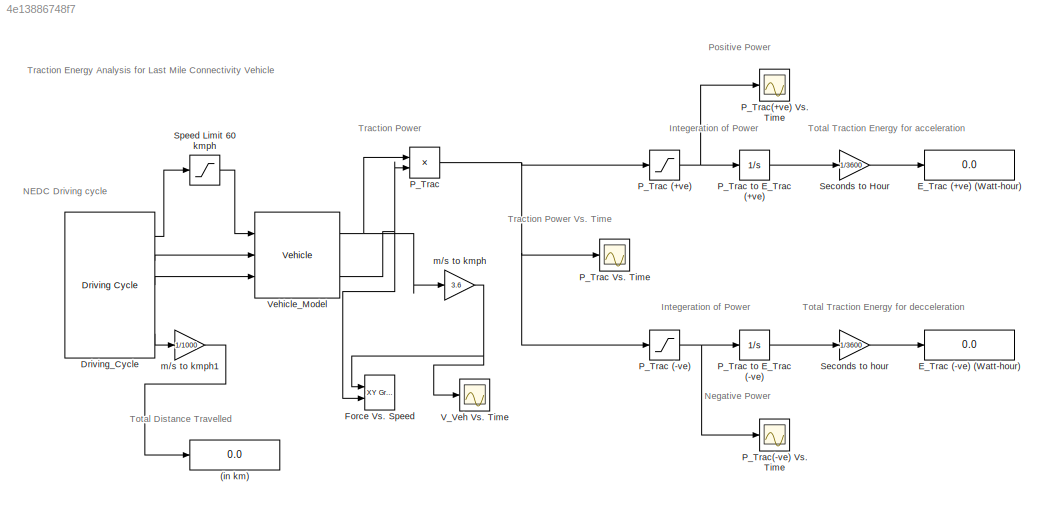
MODEL slx_4e13886748f7
KIND model
CONFIG AbsTol = auto
CONFIG EnableMultiTasking = off
CONFIG FixedStep = auto
CONFIG MaxStep = auto
CONFIG MinStep = auto
CONFIG RelTol = 1e-3
CONFIG SampleTimeConstraint = Unconstrained
CONFIG Solver = VariableStepAuto
CONFIG SolverName = VariableStepAuto
CONFIG StartTime = 0.0
CONFIG StopTime = 1220
BLOCK [Display] (in km)
  Decimation = 1
  Ports = [1]
BLOCK [Reference] Driving_Cycle  REF=qss_tb_library/Driving Cycle/Driving Cycle  (lib defined in mdl_a75e96b0ff2a, mdl_aad2a3137e65)
  Ports = [0, 5]
  SourceBlock = qss_tb_library/Driving Cycle/Driving Cycle
  SourceType = Driving Cycle
  Tag = cycle
BLOCK [Display] E_Trac (+ve) (Watt-hour)
  Decimation = 1
  Ports = [1]
BLOCK [Display] E_Trac (-ve) (Watt-hour)
  Decimation = 1
  Ports = [1]
BLOCK [Reference] Force Vs. Speed  REF=simulink/Sinks/XY Graph
  Ports = [2]
  SourceBlock = simulink/Sinks/XY Graph
  SourceProductBaseCode = SL
  SourceProductName = Simulink
  SourceType = XY scope.
BLOCK [Product] P_Trac
  InputSameDT = off
  OutDataTypeStr = Inherit: Inherit via internal rule
  Ports = [2, 1]
  RndMeth = Floor
  SaturateOnIntegerOverflow = off
BLOCK [Saturate] P_Trac (+ve)
  InputPortMap = u0
  LowerLimit = 0
  OutMax = 60000
  OutMin = 0
  Ports = [1, 1]
  UpperLimit = 60000
BLOCK [Saturate] P_Trac (-ve)
  InputPortMap = u0
  LowerLimit = -60000
  OutMax = 0
  OutMin = -60000
  Ports = [1, 1]
  UpperLimit = 0
BLOCK [Scope] P_Trac Vs. Time
  Floating = off
  NumInputPorts = 1
  Ports = [1]
  ScopeSpecificationString = Simulink.scopes.TimeScopeBlockCfg('CurrentConfiguration', extmgr.ConfigurationSet(extmgr.Configuration('Core','General UI',true),extmgr.Configuration('Core','Source UI',true),extmgr.Configuration('Sources','WiredSimulink',true),extmgr.Configuration('Visuals','Time Domain',true,'SerializedDisplays',{struct('MinYLimReal','-35803.56879','MaxYLimReal','27666.33017','YLabelReal','','MinYLimMag','   0.0...<+1409ch>
BLOCK [Integrator] P_Trac to E_Trac (+ve)
  Ports = [1, 1]
BLOCK [Integrator] P_Trac to E_Trac (-ve)
  Ports = [1, 1]
BLOCK [Scope] P_Trac(+ve) Vs. Time
  Floating = off
  NumInputPorts = 1
  Ports = [1]
  ScopeSpecificationString = Simulink.scopes.TimeScopeBlockCfg('CurrentConfiguration', extmgr.ConfigurationSet(extmgr.Configuration('Core','General UI',true),extmgr.Configuration('Core','Source UI',true),extmgr.Configuration('Sources','WiredSimulink',true,'DataLoggingVariableName','ScopeData3'),extmgr.Configuration('Visuals','Time Domain',true,'SerializedDisplays',{struct('MinYLimReal','-2664.91753','MaxYLimReal','23984.25781...<+1450ch>
BLOCK [Scope] P_Trac(-ve) Vs. Time
  Floating = off
  NumInputPorts = 1
  Ports = [1]
  ScopeSpecificationString = Simulink.scopes.TimeScopeBlockCfg('CurrentConfiguration', extmgr.ConfigurationSet(extmgr.Configuration('Core','General UI',true),extmgr.Configuration('Core','Source UI',true),extmgr.Configuration('Sources','WiredSimulink',true,'DataLoggingVariableName','ScopeData2'),extmgr.Configuration('Visuals','Time Domain',true,'SerializedDisplays',{struct('MinYLimReal','-33138.65126','MaxYLimReal','3682.07236...<+1426ch>
BLOCK [Gain] Seconds to Hour
  Gain = 1/3600
  OutDataTypeStr = Inherit: Inherit via internal rule
  ParamDataTypeStr = Inherit: Inherit via internal rule
  SaturateOnIntegerOverflow = off
BLOCK [Gain] Seconds to hour
  Gain = 1/3600
  OutDataTypeStr = Inherit: Inherit via internal rule
  ParamDataTypeStr = Inherit: Inherit via internal rule
  SaturateOnIntegerOverflow = off
BLOCK [Saturate] Speed Limit 60 kmph
  InputPortMap = u0
  LowerLimit = 0
  OutMax = 60/3.6
  OutMin = 0
  Ports = [1, 1]
  UpperLimit = 60/3.6
BLOCK [Scope] V_Veh Vs. Time
  Floating = off
  NumInputPorts = 1
  Ports = [1]
  ScopeSpecificationString = Simulink.scopes.TimeScopeBlockCfg('CurrentConfiguration', extmgr.ConfigurationSet(extmgr.Configuration('Core','General UI',true),extmgr.Configuration('Core','Source UI',true),extmgr.Configuration('Sources','WiredSimulink',true,'DataLoggingVariableName','ScopeData1'),extmgr.Configuration('Visuals','Time Domain',true,'SerializedDisplays',{struct('MinYLimReal','-7.5','MaxYLimReal','67.5','YLabelReal'...<+1403ch>
BLOCK [Reference] Vehicle_Model  REF=qss_tb_library/Vehicle/Vehicle  (lib defined in mdl_a75e96b0ff2a, mdl_aad2a3137e65)
  Ports = [3, 3]
  SourceBlock = qss_tb_library/Vehicle/Vehicle
  SourceType = Vehicle
  Tag = vehicle
BLOCK [Gain] m//s to kmph
  Gain = 3.6
  OutDataTypeStr = Inherit: Inherit via internal rule
  ParamDataTypeStr = Inherit: Inherit via internal rule
  SaturateOnIntegerOverflow = off
BLOCK [Gain] m//s to kmph1
  Gain = 1/1000
  OutDataTypeStr = Inherit: Inherit via internal rule
  ParamDataTypeStr = Inherit: Inherit via internal rule
  SaturateOnIntegerOverflow = off
ANNOTATION (root): Traction Energy Analysis for Last Mile Connectivity Vehicle
ANNOTATION (root): Integeration of Power
ANNOTATION (root): NEDC Driving cycle
ANNOTATION (root): Negative Power
ANNOTATION (root): Positive Power
ANNOTATION (root): Total Distance Travelled
ANNOTATION (root): Total Traction Energy for acceleration
ANNOTATION (root): Total Traction Energy for decceleration
ANNOTATION (root): Traction Power
ANNOTATION (root): Traction Power Vs. Time
LINE Driving_Cycle:1 -> Speed Limit 60 kmph:1
LINE Driving_Cycle:2 -> Vehicle_Model:2
LINE Driving_Cycle:3 -> Vehicle_Model:3
LINE Driving_Cycle:5 -> m//s to kmph1:1
NET P_Trac (+ve):1 -> P_Trac to E_Trac (+ve):1, P_Trac(+ve) Vs. Time:1
NET P_Trac (-ve):1 -> P_Trac to E_Trac (-ve):1, P_Trac(-ve) Vs. Time:1
LINE P_Trac to E_Trac (+ve):1 -> Seconds to Hour:1
LINE P_Trac to E_Trac (-ve):1 -> Seconds to hour:1
NET P_Trac:1 -> P_Trac (+ve):1, P_Trac (-ve):1, P_Trac Vs. Time:1
LINE Seconds to Hour:1 -> E_Trac (+ve) (Watt-hour):1
LINE Seconds to hour:1 -> E_Trac (-ve) (Watt-hour):1
LINE Speed Limit 60 kmph:1 -> Vehicle_Model:1
NET Vehicle_Model:1 -> P_Trac:1, m//s to kmph:1
NET Vehicle_Model:3 -> Force Vs. Speed:2, P_Trac:2
LINE m//s to kmph1:1 -> (in km):1
NET m//s to kmph:1 -> Force Vs. Speed:1, V_Veh Vs. Time:1
note: NET lines group one-source signal fan-out (src -> all destinations, sorted); 1:1 wires keep LINE
